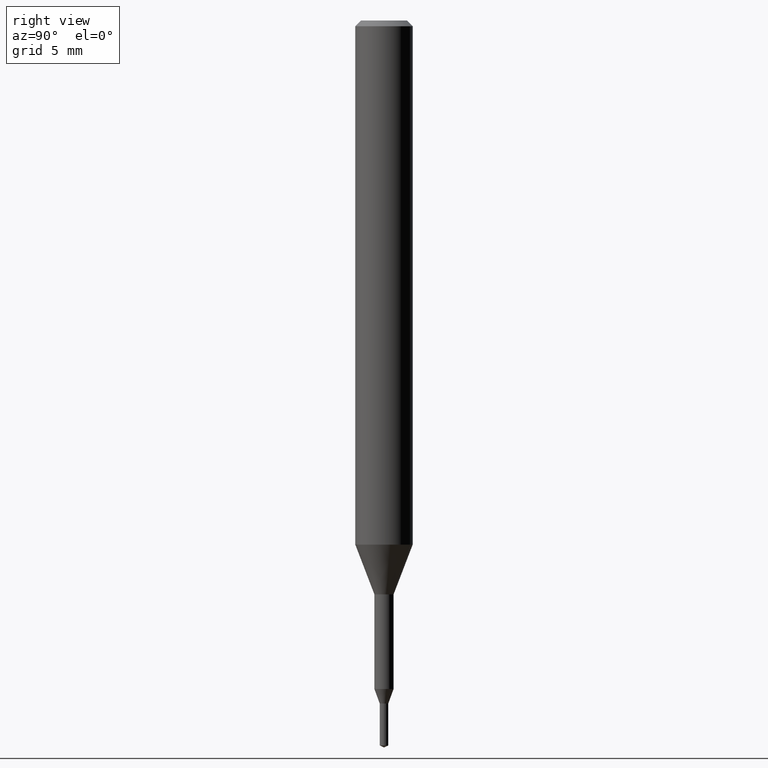
[diagram: clean part render]
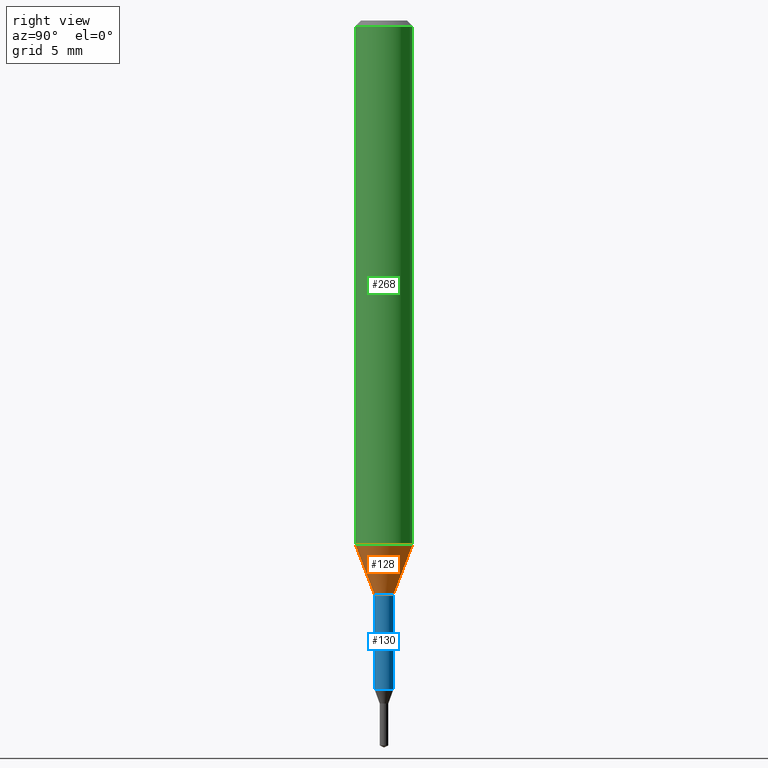
[diagram: same view with three faces highlighted in distinct colors, each labeled with its STEP entity id]
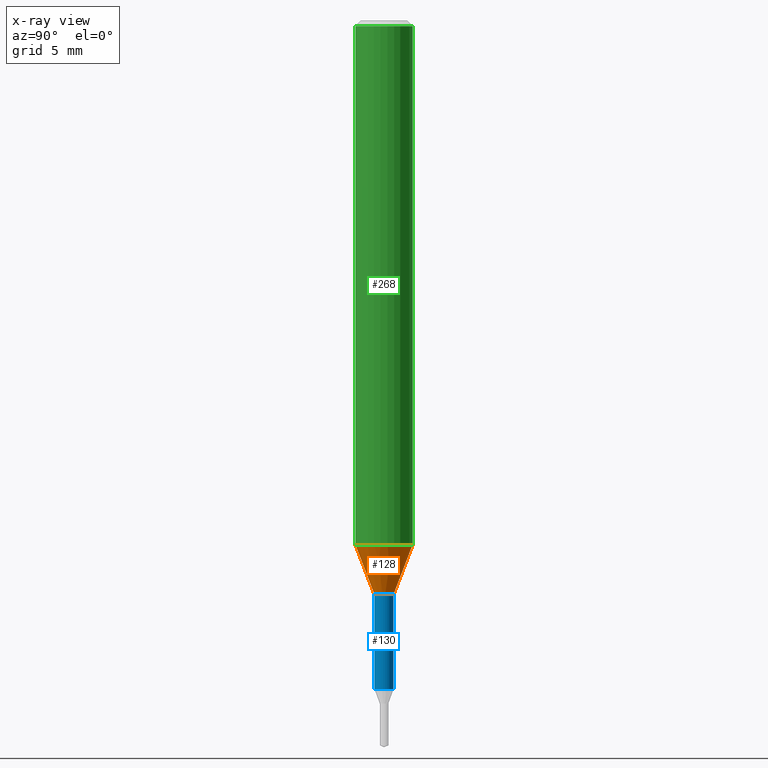
[diagram: x-ray of the same camera — body ghosted, the three highlighted faces saturated]
A machine part, right view with three faces highlighted in distinct colors.
The next image is the same camera in x-ray (body ghosted, the three faces saturated) — at least one of them is partly hidden behind the body in this view.
Their STEP definitions:

[orange] entity #128 — the highlighted conical surface has half-angle 21.001 deg.
#114=VERTEX_POINT('',#291);
#120=EDGE_CURVE('',#176,#162,#298,.T.);
#128=ADVANCED_FACE('',(#307),#308,.T.);
#150=EDGE_CURVE('',#184,#176,#331,.T.);
#162=VERTEX_POINT('',#346);
#170=EDGE_CURVE('',#184,#114,#356,.T.);
#176=VERTEX_POINT('',#362);
#178=EDGE_CURVE('',#162,#114,#364,.T.);
#184=VERTEX_POINT('',#370);
#291=CARTESIAN_POINT('',(1.83690953073357E-016,-1.5,-27.395));
#298=CIRCLE('',#491,0.5);
#307=FACE_OUTER_BOUND('',#502,.T.);
#308=CONICAL_SURFACE('',#503,1.0,0.366530581623394);
#331=LINE('',#533,#534);
#346=CARTESIAN_POINT('',(6.12303176911189E-017,-0.5,-30.0));
#356=CIRCLE('',#565,1.5);
#362=CARTESIAN_POINT('',(0.0,0.5,-30.0));
#364=LINE('',#576,#577);
#370=CARTESIAN_POINT('',(0.0,1.5,-27.395));
#491=AXIS2_PLACEMENT_3D('',#715,#716,#717);
#502=EDGE_LOOP('',(#728,#729,#730,#731));
#503=AXIS2_PLACEMENT_3D('',#732,#733,#734);
#533=CARTESIAN_POINT('',(-1.22460635382238E-016,1.0,-28.6975));
#534=VECTOR('',#751,1.0);
#565=AXIS2_PLACEMENT_3D('',#792,#793,#794);
#576=CARTESIAN_POINT('',(1.22460635382238E-016,-1.0,-28.6975));
#577=VECTOR('',#801,1.0);
#715=CARTESIAN_POINT('',(0.0,0.0,-30.0));
#716=DIRECTION('',(0.0,0.0,-1.0));
#717=DIRECTION('',(0.0,1.0,0.0));
#728=ORIENTED_EDGE('',*,*,#150,.F.);
#729=ORIENTED_EDGE('',*,*,#170,.T.);
#730=ORIENTED_EDGE('',*,*,#178,.F.);
#731=ORIENTED_EDGE('',*,*,#120,.F.);
#732=CARTESIAN_POINT('',(0.0,0.0,-28.6975));
#733=DIRECTION('',(-0.0,-0.0,1.0));
#734=DIRECTION('',(0.0,1.0,0.0));
#751=DIRECTION('',(4.38872745501645E-017,-0.35837862847256,-0.933576327171018));
#792=CARTESIAN_POINT('',(0.0,0.0,-27.395));
#793=DIRECTION('',(0.0,0.0,-1.0));
#794=DIRECTION('',(0.0,1.0,0.0));
#801=DIRECTION('',(4.38872745501645E-017,-0.35837862847256,0.933576327171018));

[blue] entity #130 — the highlighted cylindrical surface (edge-blend (fillet) strip) has radius 0.5 mm, axis along (-0, -0, 1).
#130=ADVANCED_FACE('',(#310),#311,.T.);
#140=VERTEX_POINT('',#321);
#146=EDGE_CURVE('',#194,#140,#327,.T.);
#182=EDGE_CURVE('',#246,#238,#368,.T.);
#194=VERTEX_POINT('',#381);
#200=EDGE_CURVE('',#246,#140,#389,.T.);
#236=EDGE_CURVE('',#238,#194,#430,.T.);
#238=VERTEX_POINT('',#432);
#246=VERTEX_POINT('',#441);
#310=FACE_OUTER_BOUND('',#505,.T.);
#311=CYLINDRICAL_SURFACE('',#506,0.49995);
#321=CARTESIAN_POINT('',(6.12241946593498E-017,-0.49995,-30.0));
#327=LINE('',#527,#528);
#368=LINE('',#583,#584);
#381=CARTESIAN_POINT('',(6.12241946593498E-017,-0.49995,-34.944));
#389=CIRCLE('',#605,0.49995);
#430=CIRCLE('',#657,0.49995);
#432=CARTESIAN_POINT('',(0.0,0.49995,-34.944));
#441=CARTESIAN_POINT('',(0.0,0.49995,-30.0));
#505=EDGE_LOOP('',(#736,#737,#738,#739));
#506=AXIS2_PLACEMENT_3D('',#740,#741,#742);
#527=CARTESIAN_POINT('',(6.12241946593498E-017,-0.49995,-32.472));
#528=VECTOR('',#750,1.0);
#583=CARTESIAN_POINT('',(-6.12241946593498E-017,0.49995,-32.472));
#584=VECTOR('',#805,1.0);
#605=AXIS2_PLACEMENT_3D('',#834,#835,#836);
#657=AXIS2_PLACEMENT_3D('',#890,#891,#892);
#736=ORIENTED_EDGE('',*,*,#182,.F.);
#737=ORIENTED_EDGE('',*,*,#200,.T.);
#738=ORIENTED_EDGE('',*,*,#146,.F.);
#739=ORIENTED_EDGE('',*,*,#236,.F.);
#740=CARTESIAN_POINT('',(0.0,0.0,-32.472));
#741=DIRECTION('',(-0.0,-0.0,1.0));
#742=DIRECTION('',(0.0,1.0,0.0));
#750=DIRECTION('',(-0.0,-0.0,1.0));
#805=DIRECTION('',(0.0,0.0,-1.0));
#834=CARTESIAN_POINT('',(0.0,0.0,-30.0));
#835=DIRECTION('',(0.0,0.0,-1.0));
#836=DIRECTION('',(0.0,1.0,0.0));
#890=CARTESIAN_POINT('',(0.0,0.0,-34.944));
#891=DIRECTION('',(0.0,0.0,-1.0));
#892=DIRECTION('',(0.0,1.0,0.0));

[green] entity #268 — the highlighted cylindrical surface (edge-blend (fillet) strip) has radius 1.5 mm, axis along (-0, -0, 1).
#114=VERTEX_POINT('',#291);
#136=VERTEX_POINT('',#317);
#170=EDGE_CURVE('',#184,#114,#356,.T.);
#184=VERTEX_POINT('',#370);
#212=VERTEX_POINT('',#403);
#240=EDGE_CURVE('',#114,#136,#434,.T.);
#260=EDGE_CURVE('',#212,#184,#456,.T.);
#266=EDGE_CURVE('',#212,#136,#463,.T.);
#268=ADVANCED_FACE('',(#465),#466,.T.);
#291=CARTESIAN_POINT('',(1.83690953073357E-016,-1.5,-27.395));
#317=CARTESIAN_POINT('',(1.83690953073357E-016,-1.5,-0.300000000000001));
#356=CIRCLE('',#565,1.5);
#370=CARTESIAN_POINT('',(0.0,1.5,-27.395));
#403=CARTESIAN_POINT('',(0.0,1.5,-0.300000000000001));
#434=LINE('',#662,#663);
#456=LINE('',#693,#694);
#463=CIRCLE('',#703,1.5);
#465=FACE_OUTER_BOUND('',#705,.T.);
#466=CYLINDRICAL_SURFACE('',#706,1.5);
#565=AXIS2_PLACEMENT_3D('',#792,#793,#794);
#662=CARTESIAN_POINT('',(1.83690953073357E-016,-1.5,-13.8475));
#663=VECTOR('',#893,1.0);
#693=CARTESIAN_POINT('',(-1.83690953073357E-016,1.5,-13.8475));
#694=VECTOR('',#915,1.0);
#703=AXIS2_PLACEMENT_3D('',#927,#928,#929);
#705=EDGE_LOOP('',(#931,#932,#933,#934));
#706=AXIS2_PLACEMENT_3D('',#935,#936,#937);
#792=CARTESIAN_POINT('',(0.0,0.0,-27.395));
#793=DIRECTION('',(0.0,0.0,-1.0));
#794=DIRECTION('',(0.0,1.0,0.0));
#893=DIRECTION('',(-0.0,-0.0,1.0));
#915=DIRECTION('',(0.0,0.0,-1.0));
#927=CARTESIAN_POINT('',(0.0,0.0,-0.300000000000001));
#928=DIRECTION('',(0.0,0.0,-1.0));
#929=DIRECTION('',(0.0,1.0,0.0));
#931=ORIENTED_EDGE('',*,*,#260,.F.);
#932=ORIENTED_EDGE('',*,*,#266,.T.);
#933=ORIENTED_EDGE('',*,*,#240,.F.);
#934=ORIENTED_EDGE('',*,*,#170,.F.);
#935=CARTESIAN_POINT('',(0.0,0.0,-13.8475));
#936=DIRECTION('',(-0.0,-0.0,1.0));
#937=DIRECTION('',(0.0,1.0,0.0));